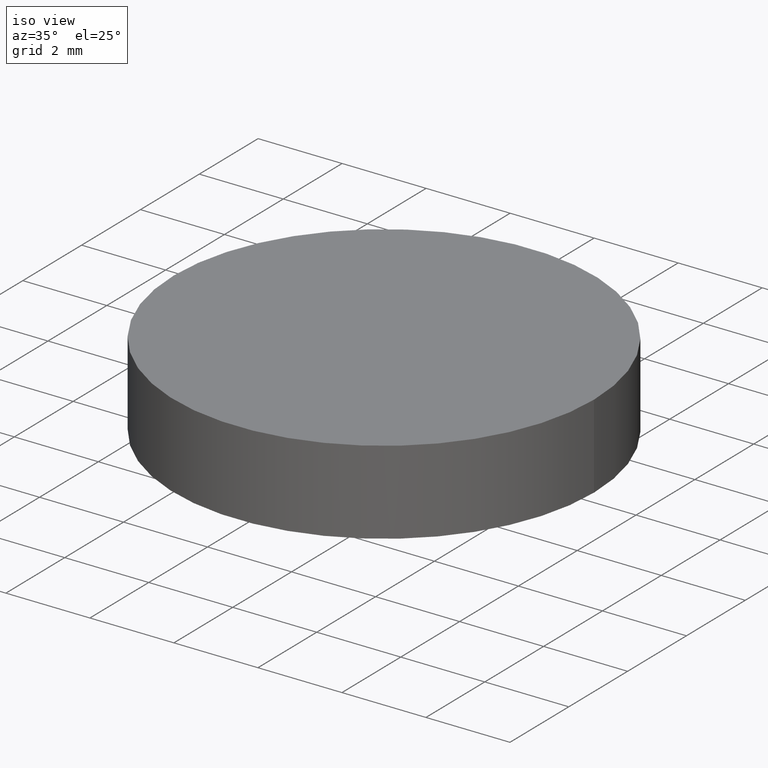
[diagram: clean part render]
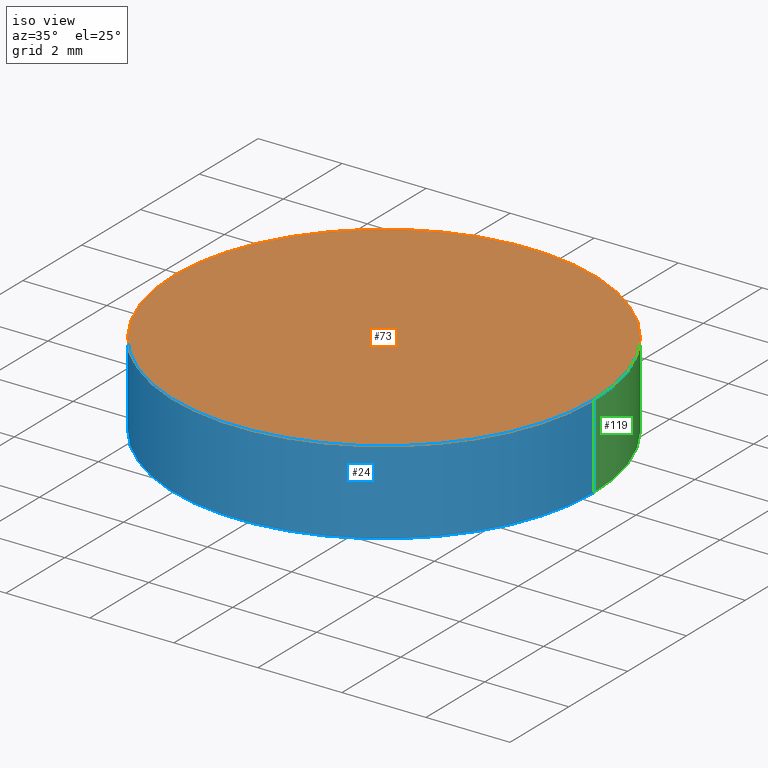
[diagram: same view with three faces highlighted in distinct colors, each labeled with its STEP entity id]
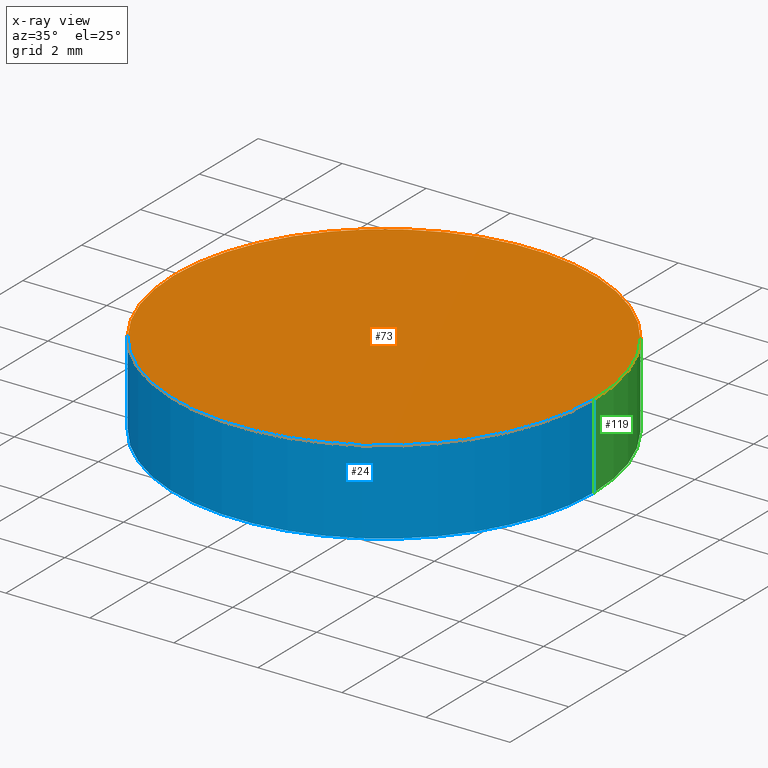
[diagram: x-ray of the same camera — body ghosted, the three highlighted faces saturated]
A machine part, iso view with three faces highlighted in distinct colors.
The next image is the same camera in x-ray (body ghosted, the three faces saturated) — at least one of them is partly hidden behind the body in this view.
Their STEP definitions:

[orange] entity #73 — the highlighted planar face has unit normal (0, 0, 1).
#2 = CARTESIAN_POINT ( 'NONE',  ( -5.000000000000000000, 0.0000000000000000000, 2.000000000000000000 ) ) ;
#6 = DIRECTION ( 'NONE',  ( 1.000000000000000000, 0.0000000000000000000, 0.0000000000000000000 ) ) ;
#8 = CARTESIAN_POINT ( 'NONE',  ( 5.000000000000000000, 6.123233995736766300E-016, 2.000000000000000000 ) ) ;
#10 = VERTEX_POINT ( 'NONE', #8 ) ;
#16 = DIRECTION ( 'NONE',  ( 1.000000000000000000, 0.0000000000000000000, 0.0000000000000000000 ) ) ;
#27 = CARTESIAN_POINT ( 'NONE',  ( 0.0000000000000000000, 0.0000000000000000000, 2.000000000000000000 ) ) ;
#45 = EDGE_CURVE ( 'NONE', #10, #125, #80, .T. ) ;
#49 = PLANE ( 'NONE',  #67 ) ;
#51 = FACE_OUTER_BOUND ( 'NONE', #136, .T. ) ;
#59 = DIRECTION ( 'NONE',  ( 1.000000000000000000, 0.0000000000000000000, -0.0000000000000000000 ) ) ;
#60 = ORIENTED_EDGE ( 'NONE', *, *, #117, .T. ) ;
#64 = AXIS2_PLACEMENT_3D ( 'NONE', #90, #78, #6 ) ;
#67 = AXIS2_PLACEMENT_3D ( 'NONE', #127, #69, #59 ) ;
#69 = DIRECTION ( 'NONE',  ( 0.0000000000000000000, 0.0000000000000000000, 1.000000000000000000 ) ) ;
#73 = ADVANCED_FACE ( 'NONE', ( #51 ), #49, .T. ) ;
#78 = DIRECTION ( 'NONE',  ( 0.0000000000000000000, 0.0000000000000000000, 1.000000000000000000 ) ) ;
#80 = CIRCLE ( 'NONE', #64, 5.000000000000000000 ) ;
#85 = DIRECTION ( 'NONE',  ( 0.0000000000000000000, 0.0000000000000000000, 1.000000000000000000 ) ) ;
#90 = CARTESIAN_POINT ( 'NONE',  ( 0.0000000000000000000, 0.0000000000000000000, 2.000000000000000000 ) ) ;
#98 = AXIS2_PLACEMENT_3D ( 'NONE', #27, #85, #16 ) ;
#102 = CIRCLE ( 'NONE', #98, 5.000000000000000000 ) ;
#117 = EDGE_CURVE ( 'NONE', #125, #10, #102, .T. ) ;
#122 = ORIENTED_EDGE ( 'NONE', *, *, #45, .T. ) ;
#125 = VERTEX_POINT ( 'NONE', #2 ) ;
#127 = CARTESIAN_POINT ( 'NONE',  ( 0.0000000000000000000, 0.0000000000000000000, 2.000000000000000000 ) ) ;
#136 = EDGE_LOOP ( 'NONE', ( #60, #122 ) ) ;

[blue] entity #24 — the highlighted cylindrical surface (partial cylindrical patch) has radius 5 mm, axis along (-0, -0, -1).
#2 = CARTESIAN_POINT ( 'NONE',  ( -5.000000000000000000, 0.0000000000000000000, 2.000000000000000000 ) ) ;
#5 = LINE ( 'NONE', #91, #116 ) ;
#7 = EDGE_CURVE ( 'NONE', #10, #130, #5, .T. ) ;
#8 = CARTESIAN_POINT ( 'NONE',  ( 5.000000000000000000, 6.123233995736766300E-016, 2.000000000000000000 ) ) ;
#10 = VERTEX_POINT ( 'NONE', #8 ) ;
#16 = DIRECTION ( 'NONE',  ( 1.000000000000000000, 0.0000000000000000000, 0.0000000000000000000 ) ) ;
#20 = EDGE_LOOP ( 'NONE', ( #40, #88, #74, #66 ) ) ;
#24 = ADVANCED_FACE ( 'NONE', ( #86 ), #108, .T. ) ;
#27 = CARTESIAN_POINT ( 'NONE',  ( 0.0000000000000000000, 0.0000000000000000000, 2.000000000000000000 ) ) ;
#31 = DIRECTION ( 'NONE',  ( -0.0000000000000000000, -0.0000000000000000000, -1.000000000000000000 ) ) ;
#38 = LINE ( 'NONE', #48, #57 ) ;
#39 = EDGE_CURVE ( 'NONE', #125, #77, #38, .T. ) ;
#40 = ORIENTED_EDGE ( 'NONE', *, *, #7, .F. ) ;
#42 = CARTESIAN_POINT ( 'NONE',  ( -5.000000000000000000, 0.0000000000000000000, 0.0000000000000000000 ) ) ;
#48 = CARTESIAN_POINT ( 'NONE',  ( -5.000000000000000000, 0.0000000000000000000, 2.000000000000000000 ) ) ;
#50 = DIRECTION ( 'NONE',  ( -0.0000000000000000000, -0.0000000000000000000, -1.000000000000000000 ) ) ;
#53 = DIRECTION ( 'NONE',  ( 1.000000000000000000, 0.0000000000000000000, 0.0000000000000000000 ) ) ;
#56 = DIRECTION ( 'NONE',  ( 0.0000000000000000000, 0.0000000000000000000, 1.000000000000000000 ) ) ;
#57 = VECTOR ( 'NONE', #112, 1000.000000000000000 ) ;
#66 = ORIENTED_EDGE ( 'NONE', *, *, #126, .T. ) ;
#74 = ORIENTED_EDGE ( 'NONE', *, *, #39, .T. ) ;
#75 = CARTESIAN_POINT ( 'NONE',  ( 5.000000000000000000, 6.123233995736766300E-016, 0.0000000000000000000 ) ) ;
#77 = VERTEX_POINT ( 'NONE', #42 ) ;
#79 = DIRECTION ( 'NONE',  ( -1.000000000000000000, 0.0000000000000000000, 0.0000000000000000000 ) ) ;
#85 = DIRECTION ( 'NONE',  ( 0.0000000000000000000, 0.0000000000000000000, 1.000000000000000000 ) ) ;
#86 = FACE_OUTER_BOUND ( 'NONE', #20, .T. ) ;
#88 = ORIENTED_EDGE ( 'NONE', *, *, #117, .F. ) ;
#91 = CARTESIAN_POINT ( 'NONE',  ( 5.000000000000000000, 6.123233995736766300E-016, 2.000000000000000000 ) ) ;
#98 = AXIS2_PLACEMENT_3D ( 'NONE', #27, #85, #16 ) ;
#102 = CIRCLE ( 'NONE', #98, 5.000000000000000000 ) ;
#107 = CARTESIAN_POINT ( 'NONE',  ( 0.0000000000000000000, 0.0000000000000000000, 2.000000000000000000 ) ) ;
#108 = CYLINDRICAL_SURFACE ( 'NONE', #115, 5.000000000000000000 ) ;
#110 = CIRCLE ( 'NONE', #111, 5.000000000000000000 ) ;
#111 = AXIS2_PLACEMENT_3D ( 'NONE', #123, #56, #53 ) ;
#112 = DIRECTION ( 'NONE',  ( -0.0000000000000000000, -0.0000000000000000000, -1.000000000000000000 ) ) ;
#115 = AXIS2_PLACEMENT_3D ( 'NONE', #107, #31, #79 ) ;
#116 = VECTOR ( 'NONE', #50, 1000.000000000000000 ) ;
#117 = EDGE_CURVE ( 'NONE', #125, #10, #102, .T. ) ;
#123 = CARTESIAN_POINT ( 'NONE',  ( 0.0000000000000000000, 0.0000000000000000000, 0.0000000000000000000 ) ) ;
#125 = VERTEX_POINT ( 'NONE', #2 ) ;
#126 = EDGE_CURVE ( 'NONE', #77, #130, #110, .T. ) ;
#130 = VERTEX_POINT ( 'NONE', #75 ) ;

[green] entity #119 — the highlighted cylindrical surface (partial cylindrical patch) has radius 5 mm, axis along (-0, -0, -1).
#2 = CARTESIAN_POINT ( 'NONE',  ( -5.000000000000000000, 0.0000000000000000000, 2.000000000000000000 ) ) ;
#5 = LINE ( 'NONE', #91, #116 ) ;
#6 = DIRECTION ( 'NONE',  ( 1.000000000000000000, 0.0000000000000000000, 0.0000000000000000000 ) ) ;
#7 = EDGE_CURVE ( 'NONE', #10, #130, #5, .T. ) ;
#8 = CARTESIAN_POINT ( 'NONE',  ( 5.000000000000000000, 6.123233995736766300E-016, 2.000000000000000000 ) ) ;
#9 = CIRCLE ( 'NONE', #103, 5.000000000000000000 ) ;
#10 = VERTEX_POINT ( 'NONE', #8 ) ;
#17 = ORIENTED_EDGE ( 'NONE', *, *, #45, .F. ) ;
#23 = DIRECTION ( 'NONE',  ( 1.000000000000000000, 0.0000000000000000000, 0.0000000000000000000 ) ) ;
#30 = FACE_OUTER_BOUND ( 'NONE', #105, .T. ) ;
#37 = CARTESIAN_POINT ( 'NONE',  ( 0.0000000000000000000, 0.0000000000000000000, 0.0000000000000000000 ) ) ;
#38 = LINE ( 'NONE', #48, #57 ) ;
#39 = EDGE_CURVE ( 'NONE', #125, #77, #38, .T. ) ;
#42 = CARTESIAN_POINT ( 'NONE',  ( -5.000000000000000000, 0.0000000000000000000, 0.0000000000000000000 ) ) ;
#43 = CYLINDRICAL_SURFACE ( 'NONE', #124, 5.000000000000000000 ) ;
#45 = EDGE_CURVE ( 'NONE', #10, #125, #80, .T. ) ;
#47 = ORIENTED_EDGE ( 'NONE', *, *, #139, .T. ) ;
#48 = CARTESIAN_POINT ( 'NONE',  ( -5.000000000000000000, 0.0000000000000000000, 2.000000000000000000 ) ) ;
#50 = DIRECTION ( 'NONE',  ( -0.0000000000000000000, -0.0000000000000000000, -1.000000000000000000 ) ) ;
#54 = ORIENTED_EDGE ( 'NONE', *, *, #39, .F. ) ;
#57 = VECTOR ( 'NONE', #112, 1000.000000000000000 ) ;
#58 = DIRECTION ( 'NONE',  ( -1.000000000000000000, 0.0000000000000000000, 0.0000000000000000000 ) ) ;
#64 = AXIS2_PLACEMENT_3D ( 'NONE', #90, #78, #6 ) ;
#65 = ORIENTED_EDGE ( 'NONE', *, *, #7, .T. ) ;
#75 = CARTESIAN_POINT ( 'NONE',  ( 5.000000000000000000, 6.123233995736766300E-016, 0.0000000000000000000 ) ) ;
#77 = VERTEX_POINT ( 'NONE', #42 ) ;
#78 = DIRECTION ( 'NONE',  ( 0.0000000000000000000, 0.0000000000000000000, 1.000000000000000000 ) ) ;
#80 = CIRCLE ( 'NONE', #64, 5.000000000000000000 ) ;
#90 = CARTESIAN_POINT ( 'NONE',  ( 0.0000000000000000000, 0.0000000000000000000, 2.000000000000000000 ) ) ;
#91 = CARTESIAN_POINT ( 'NONE',  ( 5.000000000000000000, 6.123233995736766300E-016, 2.000000000000000000 ) ) ;
#97 = CARTESIAN_POINT ( 'NONE',  ( 0.0000000000000000000, 0.0000000000000000000, 2.000000000000000000 ) ) ;
#103 = AXIS2_PLACEMENT_3D ( 'NONE', #37, #104, #23 ) ;
#104 = DIRECTION ( 'NONE',  ( 0.0000000000000000000, 0.0000000000000000000, 1.000000000000000000 ) ) ;
#105 = EDGE_LOOP ( 'NONE', ( #17, #65, #47, #54 ) ) ;
#109 = DIRECTION ( 'NONE',  ( -0.0000000000000000000, -0.0000000000000000000, -1.000000000000000000 ) ) ;
#112 = DIRECTION ( 'NONE',  ( -0.0000000000000000000, -0.0000000000000000000, -1.000000000000000000 ) ) ;
#116 = VECTOR ( 'NONE', #50, 1000.000000000000000 ) ;
#119 = ADVANCED_FACE ( 'NONE', ( #30 ), #43, .T. ) ;
#124 = AXIS2_PLACEMENT_3D ( 'NONE', #97, #109, #58 ) ;
#125 = VERTEX_POINT ( 'NONE', #2 ) ;
#130 = VERTEX_POINT ( 'NONE', #75 ) ;
#139 = EDGE_CURVE ( 'NONE', #130, #77, #9, .T. ) ;